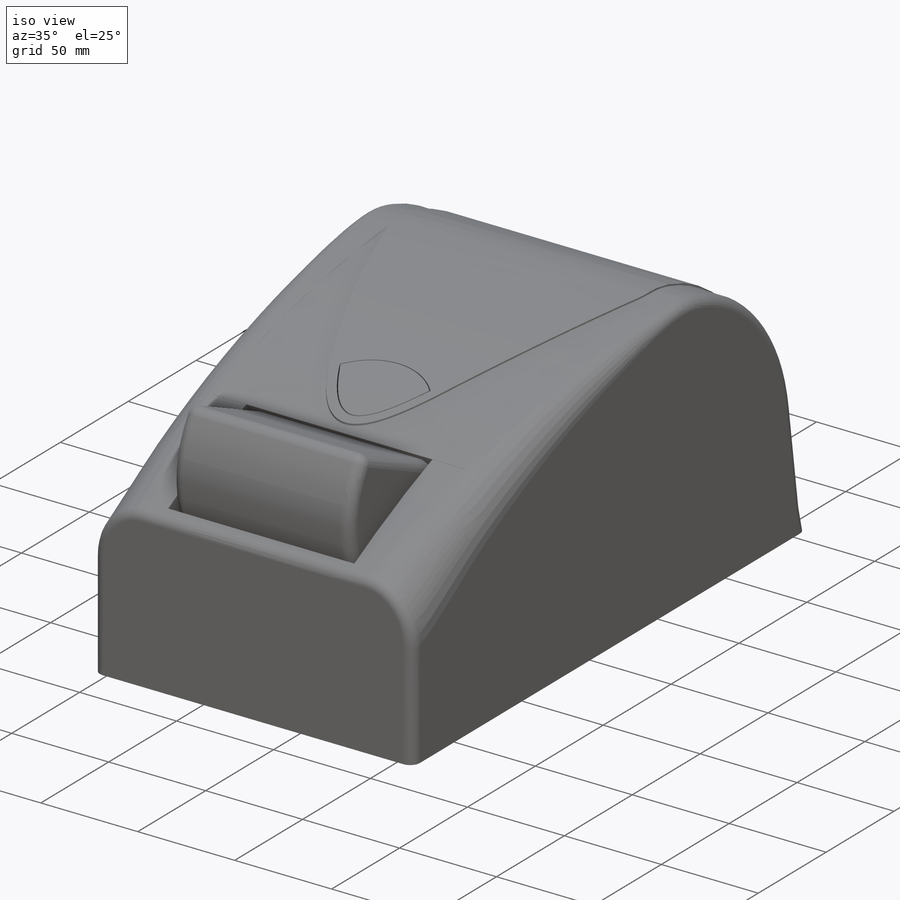
[diagram: iso view]
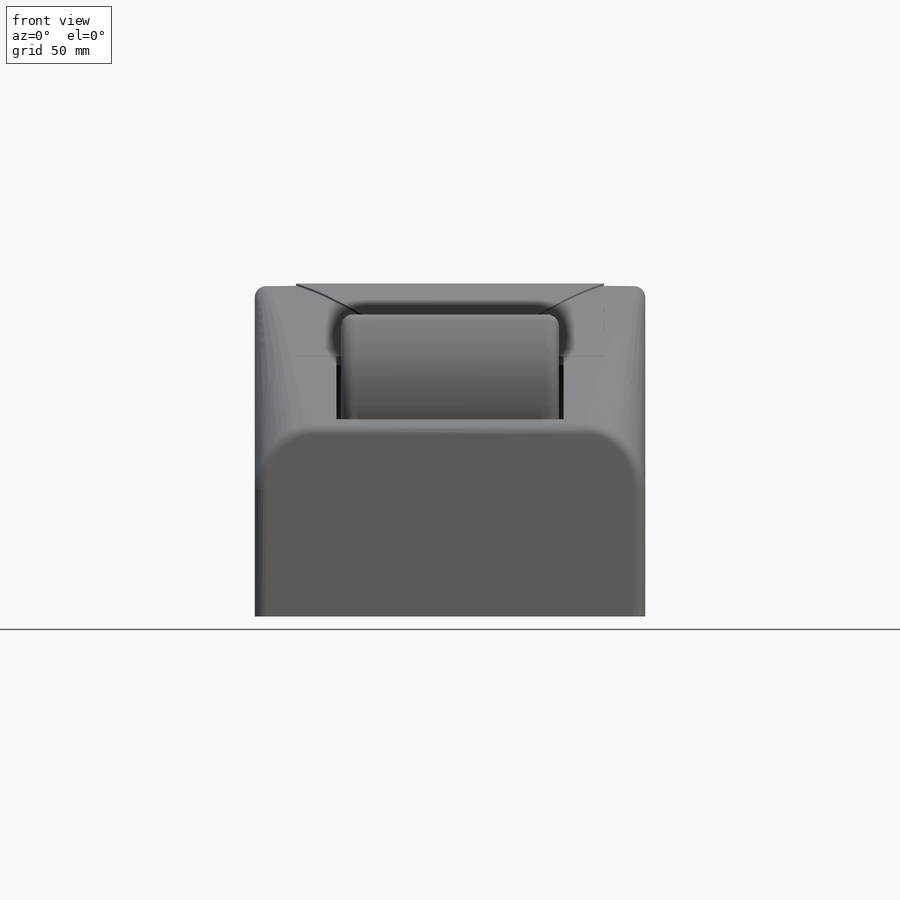
[diagram: front view]
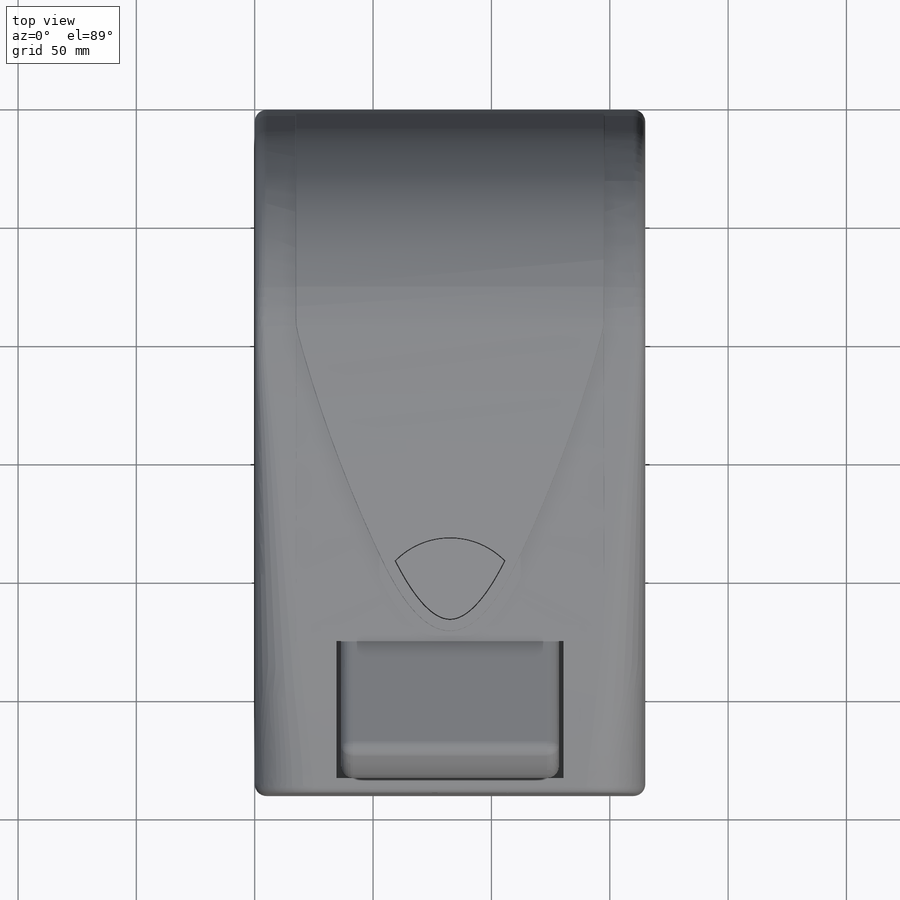
[diagram: top view]
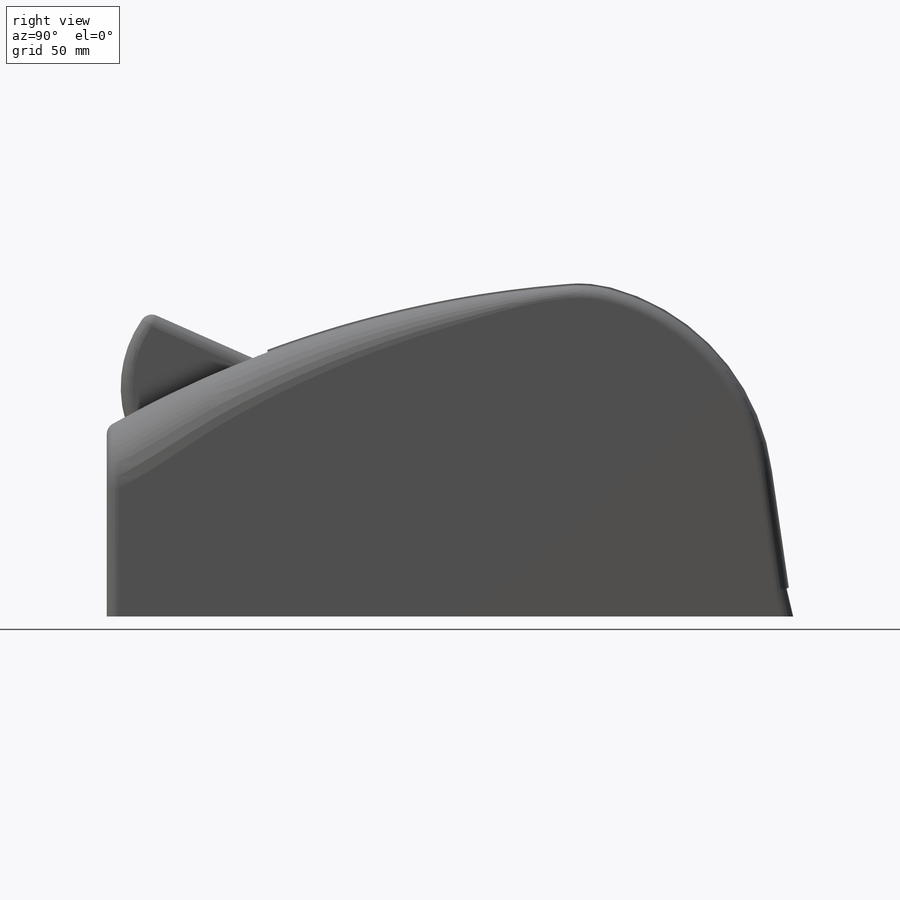
[diagram: right view]
SOLIDWORKS PART (.sldprt)
format: sldprt  version: not decoded by parser v0  size: 869,888 bytes
history: native  units: mm
features: fillet x10, sketch x6, extrude x4, plane x3, cut_extrude x3, material x1, shell x1 (+11 scaffold rows collapsed)
feature tree (39):
  scaffold x11  (default folders/planes/origin — collapsed)
  material  "Material <not specified>"
  sketch  "Sketch1"  dims[c1.D2=50.0mm c1.D1=290.0mm c2.D2=140.0mm c2.D3=80.0mm c2.D4=12.0mm c2.D5=50.0mm c2.D6=10.0mm]
  extrude  "Boss-Extrude1"  Depth=165mm
  extrude  "VarFillet2"  Depth=5mm
  plane  "Plane1"  Offset=5mm
  sketch  "Sketch2"  dims[D1=96.0mm D2=48.0mm D3=65.0mm D4=6.0mm]
  cut_extrude  "Cut-Extrude1"  [1 undecoded]
  shell  "Shell1"  Thickness=5mm
  plane  "Plane2"  Offset=140mm
  plane  "Plane3"  Offset=82.5mm
  sketch  "Sketch4"  dims[c1.D1=10.0mm c1.D2=10.0mm c2.D1=1.0mm c2.D2=5.0mm]
  extrude  "Boss-Extrude2"  Depth=65mm
  sketch  "Sketch5"
  cut_extrude  "Cut-Extrude4"  Depth=1mm
  fillet  "Fillet1"  Radius=25mm
  fillet  "Fillet2"  Radius=0.4mm
  fillet  "Fillet3"  Radius=0.4mm
  fillet  "Fillet4"  Radius=0.4mm
  fillet  "Fillet5"  Radius=0.4mm
  fillet  "Fillet6"  Radius=0.4mm
  fillet  "Fillet7"  Radius=0.4mm
  fillet  "Fillet8"  Radius=5mm
  sketch  "Sketch8"
  extrude  "Boss-Extrude3"  Depth=46mm
  sketch  "Sketch7"  dims[D1=5.0mm D2=0.5mm]
  cut_extrude  "Cut-Extrude5"  Depth=20.5mm
  fillet  "Fillet17"  Radius=5mm
  fillet  "Fillet18"  Radius=5mm
decode coverage: 21 of 24 modeling features carry decoded parameters
note: 1 parameter value undecoded
note: suppression state not decoded; provenance and decode notes live in map.json
